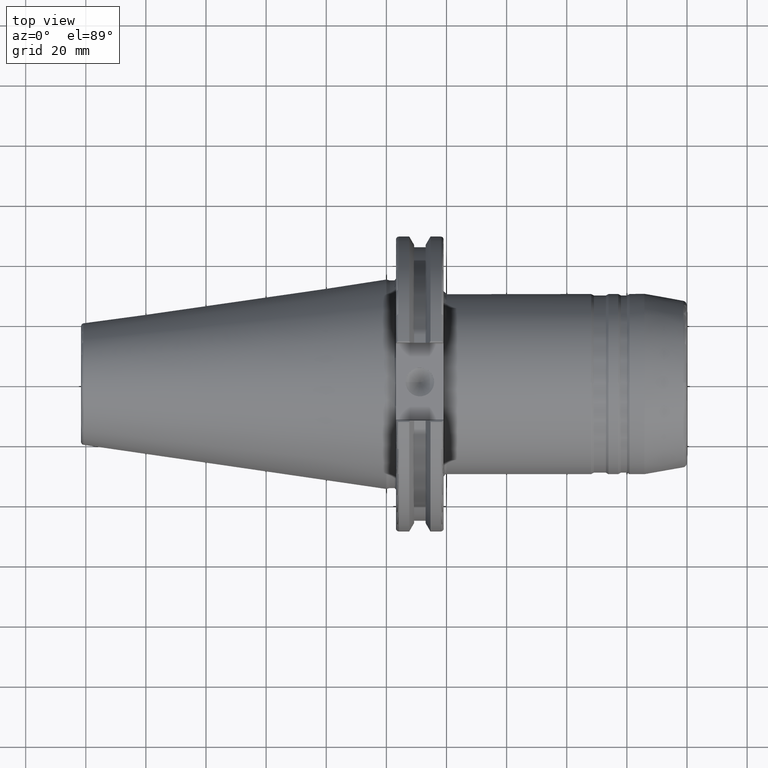
[diagram: clean part render]
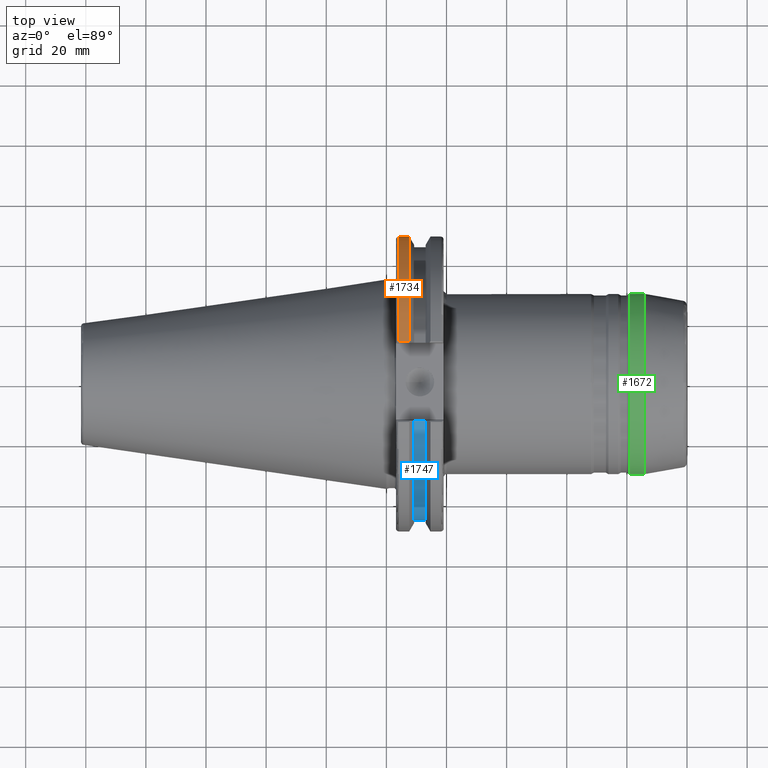
[diagram: same view with three faces highlighted in distinct colors, each labeled with its STEP entity id]
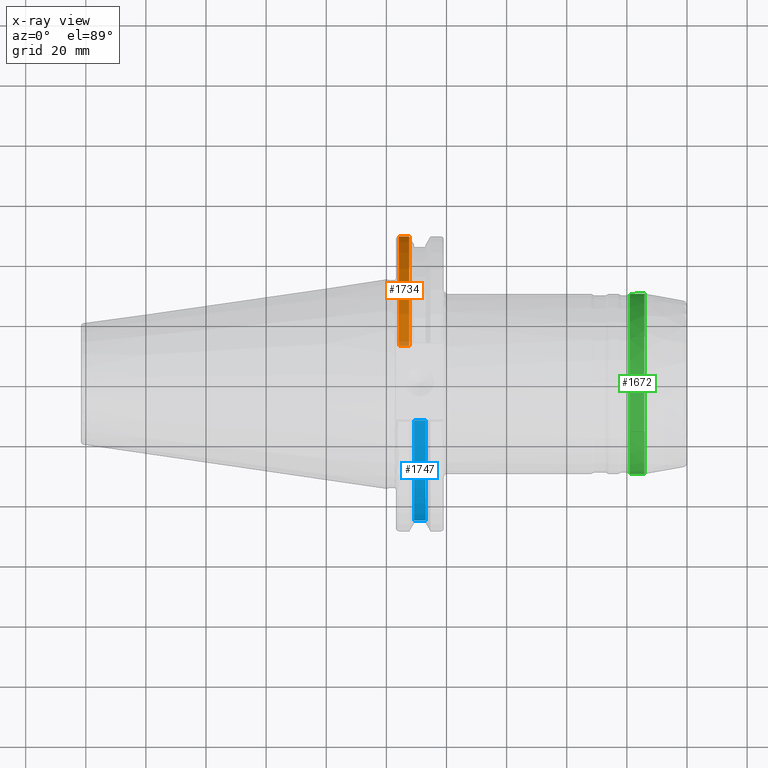
[diagram: x-ray of the same camera — body ghosted, the three highlighted faces saturated]
A machine part, top view with three faces highlighted in distinct colors.
The next image is the same camera in x-ray (body ghosted, the three faces saturated) — at least one of them is partly hidden behind the body in this view.
Their STEP definitions:

[orange] entity #1734 — the highlighted cylindrical surface (partial cylindrical patch) has radius 49.2125 mm, axis along (1, 0, 0).
#237=FACE_OUTER_BOUND('',#355,.T.);
#355=EDGE_LOOP('',(#1530,#1531,#1532,#1533));
#452=LINE('',#3183,#546);
#466=LINE('',#3242,#560);
#546=VECTOR('',#2433,10.);
#560=VECTOR('',#2485,10.);
#654=CIRCLE('',#1952,49.2125);
#662=CIRCLE('',#1973,49.2125);
#824=VERTEX_POINT('',#3156);
#825=VERTEX_POINT('',#3165);
#826=VERTEX_POINT('',#3182);
#840=VERTEX_POINT('',#3241);
#1054=EDGE_CURVE('',#824,#825,#654,.T.);
#1057=EDGE_CURVE('',#825,#826,#452,.T.);
#1082=EDGE_CURVE('',#840,#824,#466,.T.);
#1083=EDGE_CURVE('',#826,#840,#662,.T.);
#1530=ORIENTED_EDGE('',*,*,#1054,.F.);
#1531=ORIENTED_EDGE('',*,*,#1082,.F.);
#1532=ORIENTED_EDGE('',*,*,#1083,.F.);
#1533=ORIENTED_EDGE('',*,*,#1057,.F.);
#1650=CYLINDRICAL_SURFACE('',#1972,49.2125);
#1734=ADVANCED_FACE('',(#237),#1650,.T.);
#1952=AXIS2_PLACEMENT_3D('',#3166,#2429,#2430);
#1972=AXIS2_PLACEMENT_3D('',#3240,#2483,#2484);
#1973=AXIS2_PLACEMENT_3D('',#3243,#2486,#2487);
#2429=DIRECTION('center_axis',(-1.,0.,0.));
#2430=DIRECTION('ref_axis',(0.,1.,-6.12323399573677E-17));
#2433=DIRECTION('',(1.,0.,0.));
#2483=DIRECTION('center_axis',(1.,0.,0.));
#2484=DIRECTION('ref_axis',(0.,1.,0.));
#2485=DIRECTION('',(-1.,0.,0.));
#2486=DIRECTION('center_axis',(1.,0.,0.));
#2487=DIRECTION('ref_axis',(0.,0.,-1.));
#3156=CARTESIAN_POINT('',(4.175,13.4317035994433,47.3440544806494));
#3165=CARTESIAN_POINT('',(4.175,13.4317035994433,-47.3440544806494));
#3166=CARTESIAN_POINT('Origin',(4.175,0.,0.));
#3182=CARTESIAN_POINT('',(7.60089096595127,13.4317035994433,-47.3440544806494));
#3183=CARTESIAN_POINT('',(5.38794548297563,13.4317035994433,-47.3440544806494));
#3240=CARTESIAN_POINT('Origin',(5.38794548297563,0.,0.));
#3241=CARTESIAN_POINT('',(7.60089096595127,13.4317035994433,47.3440544806494));
#3242=CARTESIAN_POINT('',(5.38794548297563,13.4317035994433,47.3440544806494));
#3243=CARTESIAN_POINT('Origin',(7.60089096595127,0.,0.));

[blue] entity #1747 — the highlighted cylindrical surface (partial cylindrical patch) has radius 45.6435 mm, axis along (1, 0, 0).
#250=FACE_OUTER_BOUND('',#368,.T.);
#368=EDGE_LOOP('',(#1587,#1588,#1589,#1590));
#441=LINE('',#3086,#535);
#446=LINE('',#3104,#540);
#535=VECTOR('',#2402,10.);
#540=VECTOR('',#2409,10.);
#670=CIRCLE('',#1992,45.6435);
#672=CIRCLE('',#1996,45.6435);
#808=VERTEX_POINT('',#3083);
#809=VERTEX_POINT('',#3085);
#814=VERTEX_POINT('',#3101);
#815=VERTEX_POINT('',#3103);
#1032=EDGE_CURVE('',#809,#808,#441,.T.);
#1039=EDGE_CURVE('',#815,#814,#446,.T.);
#1097=EDGE_CURVE('',#808,#815,#670,.T.);
#1099=EDGE_CURVE('',#809,#814,#672,.T.);
#1587=ORIENTED_EDGE('',*,*,#1039,.T.);
#1588=ORIENTED_EDGE('',*,*,#1099,.F.);
#1589=ORIENTED_EDGE('',*,*,#1032,.T.);
#1590=ORIENTED_EDGE('',*,*,#1097,.T.);
#1654=CYLINDRICAL_SURFACE('',#1995,45.6435);
#1747=ADVANCED_FACE('',(#250),#1654,.T.);
#1992=AXIS2_PLACEMENT_3D('',#3278,#2527,#2528);
#1995=AXIS2_PLACEMENT_3D('',#3281,#2533,#2534);
#1996=AXIS2_PLACEMENT_3D('',#3282,#2535,#2536);
#2402=DIRECTION('',(-1.,0.,0.));
#2409=DIRECTION('',(1.,0.,0.));
#2527=DIRECTION('center_axis',(1.,0.,0.));
#2528=DIRECTION('ref_axis',(0.,0.,-1.));
#2533=DIRECTION('center_axis',(1.,0.,0.));
#2534=DIRECTION('ref_axis',(0.,-1.,-1.22464679914735E-16));
#2535=DIRECTION('center_axis',(1.,0.,0.));
#2536=DIRECTION('ref_axis',(0.,0.,-1.));
#3083=CARTESIAN_POINT('',(9.21200000000001,-12.95,43.7678716897452));
#3085=CARTESIAN_POINT('',(13.042,-12.95,43.7678716897452));
#3086=CARTESIAN_POINT('',(11.127,-12.95,43.7678716897452));
#3101=CARTESIAN_POINT('',(13.042,-12.95,-43.7678716897452));
#3103=CARTESIAN_POINT('',(9.21200000000001,-12.95,-43.7678716897452));
#3104=CARTESIAN_POINT('',(11.127,-12.95,-43.7678716897452));
#3278=CARTESIAN_POINT('Origin',(9.21200000000001,0.,0.));
#3281=CARTESIAN_POINT('Origin',(11.127,0.,0.));
#3282=CARTESIAN_POINT('Origin',(13.042,0.,0.));

[green] entity #1672 — the highlighted cylindrical surface (bore or boss wall) has radius 30 mm, axis along (1, 0, 0).
#175=FACE_OUTER_BOUND('',#277,.T.);
#277=EDGE_LOOP('',(#1188,#1189,#1190,#1191,#1192));
#388=LINE('',#2660,#482);
#482=VECTOR('',#2129,30.);
#601=CIRCLE('',#1829,30.);
#602=CIRCLE('',#1830,30.);
#604=CIRCLE('',#1833,30.);
#706=VERTEX_POINT('',#2652);
#707=VERTEX_POINT('',#2653);
#708=VERTEX_POINT('',#2658);
#890=EDGE_CURVE('',#706,#707,#601,.T.);
#891=EDGE_CURVE('',#707,#706,#602,.T.);
#893=EDGE_CURVE('',#708,#708,#604,.T.);
#894=EDGE_CURVE('',#708,#707,#388,.T.);
#1188=ORIENTED_EDGE('',*,*,#893,.F.);
#1189=ORIENTED_EDGE('',*,*,#894,.T.);
#1190=ORIENTED_EDGE('',*,*,#890,.F.);
#1191=ORIENTED_EDGE('',*,*,#891,.F.);
#1192=ORIENTED_EDGE('',*,*,#894,.F.);
#1629=CYLINDRICAL_SURFACE('',#1832,30.);
#1672=ADVANCED_FACE('',(#175),#1629,.T.);
#1829=AXIS2_PLACEMENT_3D('',#2654,#2119,#2120);
#1830=AXIS2_PLACEMENT_3D('',#2655,#2121,#2122);
#1832=AXIS2_PLACEMENT_3D('',#2657,#2125,#2126);
#1833=AXIS2_PLACEMENT_3D('',#2659,#2127,#2128);
#2119=DIRECTION('center_axis',(-1.,0.,0.));
#2120=DIRECTION('ref_axis',(0.,-1.,1.83697019872103E-16));
#2121=DIRECTION('center_axis',(-1.,0.,0.));
#2122=DIRECTION('ref_axis',(0.,-1.,1.83697019872103E-16));
#2125=DIRECTION('center_axis',(1.,0.,0.));
#2126=DIRECTION('ref_axis',(0.,1.,0.));
#2127=DIRECTION('center_axis',(1.,0.,0.));
#2128=DIRECTION('ref_axis',(0.,0.,-1.));
#2129=DIRECTION('',(-1.,0.,0.));
#2652=CARTESIAN_POINT('',(80.9732050807569,-3.67394039744206E-15,30.));
#2653=CARTESIAN_POINT('',(80.9732050807569,-30.,-3.67394039744206E-15));
#2654=CARTESIAN_POINT('Origin',(80.9732050807569,0.,0.));
#2655=CARTESIAN_POINT('Origin',(80.9732050807569,0.,0.));
#2657=CARTESIAN_POINT('Origin',(83.34391042737,0.,0.));
#2658=CARTESIAN_POINT('',(85.8217954509556,-30.,-3.67394039744206E-15));
#2659=CARTESIAN_POINT('Origin',(85.8217954509556,0.,0.));
#2660=CARTESIAN_POINT('',(83.34391042737,-30.,-3.67394039744206E-15));